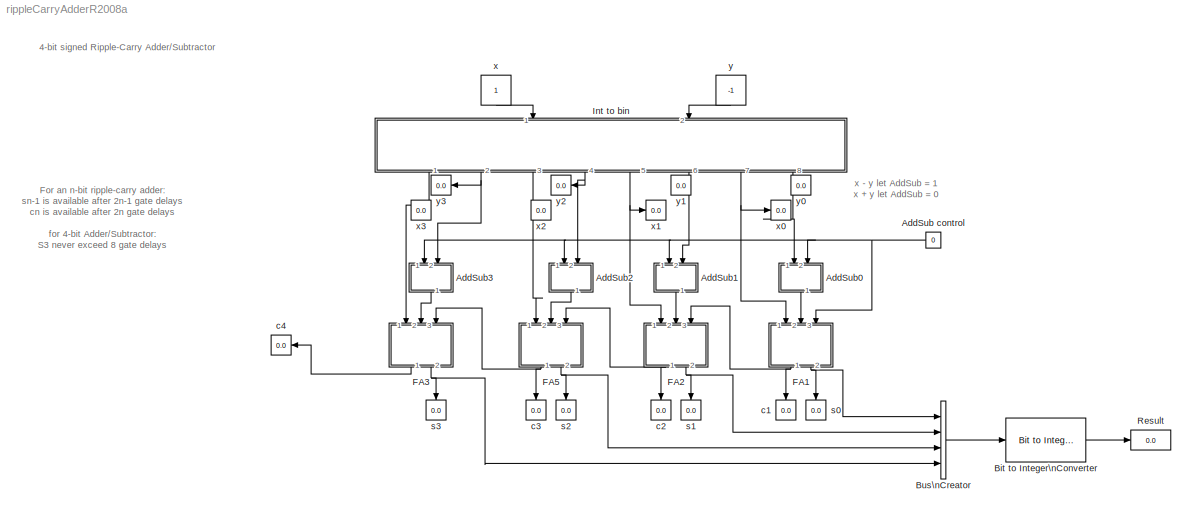
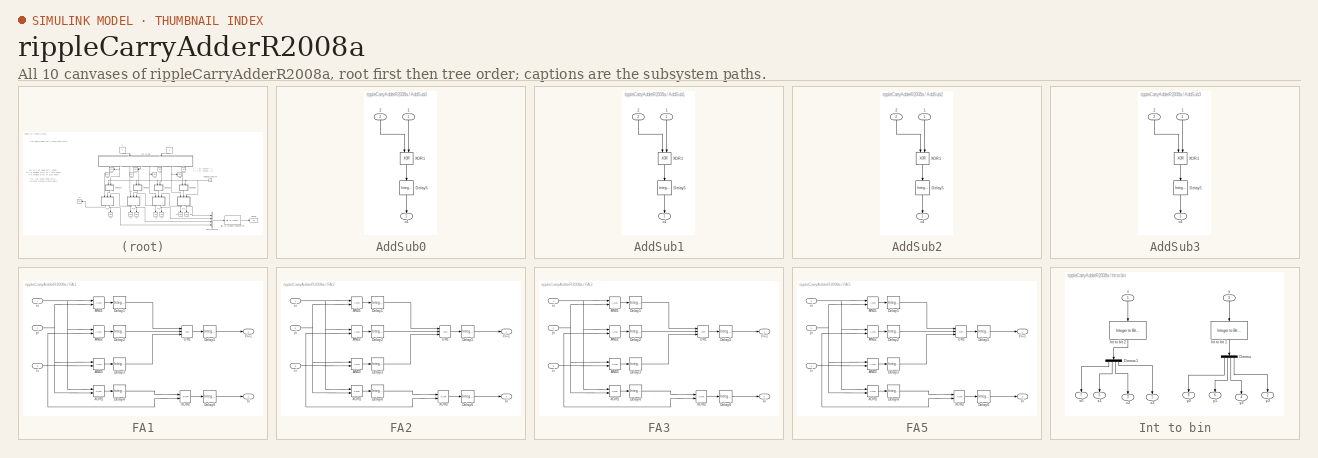
[diagram: thumbnail index - all 10 canvases of the model, root first then tree order]
MODEL rippleCarryAdderR2008a
KIND model
BLOCK [Constant] AddSub control
  OutDataTypeMode = boolean
  OutDataTypeStr = boolean
  OutMax = 1
  OutMin = 0
  Value = 0
BLOCK [SubSystem] AddSub0
  FunctionWithSeparateData = off
  MaskHideContents = off
  MinAlgLoopOccurrences = off
  Opaque = off
  Ports = [2, 1]
  PropExecContextOutsideSubsystem = off
  RTWSystemCode = Auto
BLOCK [Inport] AddSub0/1
  IconDisplay = Port number
BLOCK [Inport] AddSub0/2
  IconDisplay = Port number
  Port = 2
BLOCK [Reference] AddSub0/Delay5  REF=simulink/Discrete/Integer Delay
  NumDelays = 1
  Ports = [1, 1]
  SourceBlock = simulink/Discrete/Integer Delay
  SourceType = Integer Delay
  samptime = -1
  vinit = 0
BLOCK [Logic] AddSub0/XOR1
  AllPortsSameDT = off
  IconShape = distinctive
  Operator = XOR
  OutDataTypeMode = boolean
  OutDataTypeStr = boolean
  Ports = [2, 1]
BLOCK [Outport] AddSub0/o1
  IconDisplay = Port number
BLOCK [SubSystem] AddSub1
  FunctionWithSeparateData = off
  MaskHideContents = off
  MinAlgLoopOccurrences = off
  Opaque = off
  Ports = [2, 1]
  PropExecContextOutsideSubsystem = off
  RTWSystemCode = Auto
BLOCK [Inport] AddSub1/1
  IconDisplay = Port number
BLOCK [Inport] AddSub1/2
  IconDisplay = Port number
  Port = 2
BLOCK [Reference] AddSub1/Delay5  REF=simulink/Discrete/Integer Delay
  NumDelays = 1
  Ports = [1, 1]
  SourceBlock = simulink/Discrete/Integer Delay
  SourceType = Integer Delay
  samptime = -1
  vinit = 0
BLOCK [Logic] AddSub1/XOR1
  AllPortsSameDT = off
  IconShape = distinctive
  Operator = XOR
  OutDataTypeMode = boolean
  OutDataTypeStr = boolean
  Ports = [2, 1]
BLOCK [Outport] AddSub1/o1
  IconDisplay = Port number
BLOCK [SubSystem] AddSub2
  FunctionWithSeparateData = off
  MaskHideContents = off
  MinAlgLoopOccurrences = off
  Opaque = off
  Ports = [2, 1]
  PropExecContextOutsideSubsystem = off
  RTWSystemCode = Auto
BLOCK [Inport] AddSub2/1
  IconDisplay = Port number
BLOCK [Inport] AddSub2/2
  IconDisplay = Port number
  Port = 2
BLOCK [Reference] AddSub2/Delay5  REF=simulink/Discrete/Integer Delay
  NumDelays = 1
  Ports = [1, 1]
  SourceBlock = simulink/Discrete/Integer Delay
  SourceType = Integer Delay
  samptime = -1
  vinit = 0
BLOCK [Logic] AddSub2/XOR1
  AllPortsSameDT = off
  IconShape = distinctive
  Operator = XOR
  OutDataTypeMode = boolean
  OutDataTypeStr = boolean
  Ports = [2, 1]
BLOCK [Outport] AddSub2/o1
  IconDisplay = Port number
BLOCK [SubSystem] AddSub3
  FunctionWithSeparateData = off
  MaskHideContents = off
  MinAlgLoopOccurrences = off
  Opaque = off
  Ports = [2, 1]
  PropExecContextOutsideSubsystem = off
  RTWSystemCode = Auto
BLOCK [Inport] AddSub3/1
  IconDisplay = Port number
BLOCK [Inport] AddSub3/2
  IconDisplay = Port number
  Port = 2
BLOCK [Reference] AddSub3/Delay5  REF=simulink/Discrete/Integer Delay
  NumDelays = 1
  Ports = [1, 1]
  SourceBlock = simulink/Discrete/Integer Delay
  SourceType = Integer Delay
  samptime = -1
  vinit = 0
BLOCK [Logic] AddSub3/XOR1
  AllPortsSameDT = off
  IconShape = distinctive
  Operator = XOR
  OutDataTypeMode = boolean
  OutDataTypeStr = boolean
  Ports = [2, 1]
BLOCK [Outport] AddSub3/o1
  IconDisplay = Port number
BLOCK [Reference] Bit to Integer\nConverter  REF=commutil2/Bit to Integer\nConverter
  Ports = [1, 1]
  SourceBlock = commutil2/Bit to Integer\nConverter
  SourceType = Bit to Integer Converter
  bitOrder = LSB first
  nbits = 4
  outDtype = Inherit via internal rule
  outDtypeSigned = Inherit via internal rule
  signedOutputValues = Signed
BLOCK [BusCreator] Bus\nCreator
  DisplayOption = bar
  Ports = [4, 1]
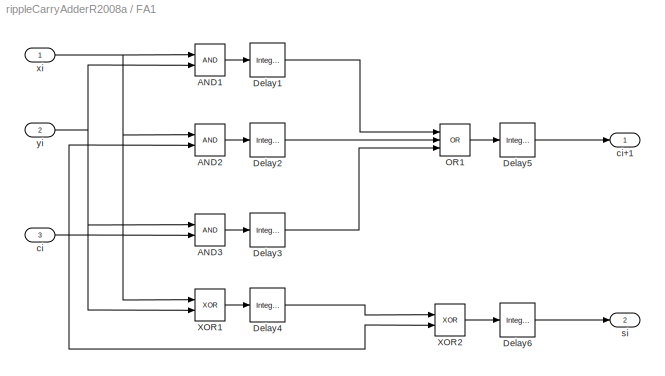
BLOCK [SubSystem] FA1
  FunctionWithSeparateData = off
  MaskHideContents = off
  MinAlgLoopOccurrences = off
  Opaque = off
  Ports = [3, 2]
  PropExecContextOutsideSubsystem = off
  RTWSystemCode = Auto
BLOCK [Logic] FA1/AND1
  AllPortsSameDT = off
  IconShape = distinctive
  OutDataTypeMode = boolean
  OutDataTypeStr = boolean
  Ports = [2, 1]
BLOCK [Logic] FA1/AND2
  AllPortsSameDT = off
  IconShape = distinctive
  OutDataTypeMode = boolean
  OutDataTypeStr = boolean
  Ports = [2, 1]
BLOCK [Logic] FA1/AND3
  AllPortsSameDT = off
  IconShape = distinctive
  OutDataTypeMode = boolean
  OutDataTypeStr = boolean
  Ports = [2, 1]
BLOCK [Reference] FA1/Delay1  REF=simulink/Discrete/Integer Delay
  NumDelays = 1
  Ports = [1, 1]
  SourceBlock = simulink/Discrete/Integer Delay
  SourceType = Integer Delay
  samptime = -1
  vinit = 0
BLOCK [Reference] FA1/Delay2  REF=simulink/Discrete/Integer Delay
  NumDelays = 1
  Ports = [1, 1]
  SourceBlock = simulink/Discrete/Integer Delay
  SourceType = Integer Delay
  samptime = -1
  vinit = 0
BLOCK [Reference] FA1/Delay3  REF=simulink/Discrete/Integer Delay
  NumDelays = 1
  Ports = [1, 1]
  SourceBlock = simulink/Discrete/Integer Delay
  SourceType = Integer Delay
  samptime = -1
  vinit = 0
BLOCK [Reference] FA1/Delay4  REF=simulink/Discrete/Integer Delay
  NumDelays = 1
  Ports = [1, 1]
  SourceBlock = simulink/Discrete/Integer Delay
  SourceType = Integer Delay
  samptime = -1
  vinit = 0
BLOCK [Reference] FA1/Delay5  REF=simulink/Discrete/Integer Delay
  NumDelays = 1
  Ports = [1, 1]
  SourceBlock = simulink/Discrete/Integer Delay
  SourceType = Integer Delay
  samptime = -1
  vinit = 0
BLOCK [Reference] FA1/Delay6  REF=simulink/Discrete/Integer Delay
  NumDelays = 1
  Ports = [1, 1]
  SourceBlock = simulink/Discrete/Integer Delay
  SourceType = Integer Delay
  samptime = -1
  vinit = 0
BLOCK [Logic] FA1/OR1
  AllPortsSameDT = off
  IconShape = distinctive
  Inputs = 3
  Operator = OR
  OutDataTypeMode = boolean
  OutDataTypeStr = boolean
  Ports = [3, 1]
BLOCK [Logic] FA1/XOR1
  AllPortsSameDT = off
  IconShape = distinctive
  Operator = XOR
  OutDataTypeMode = boolean
  OutDataTypeStr = boolean
  Ports = [2, 1]
BLOCK [Logic] FA1/XOR2
  AllPortsSameDT = off
  IconShape = distinctive
  Operator = XOR
  OutDataTypeMode = boolean
  OutDataTypeStr = boolean
  Ports = [2, 1]
BLOCK [Inport] FA1/ci
  IconDisplay = Port number
  Port = 3
BLOCK [Outport] FA1/ci+1
  IconDisplay = Port number
BLOCK [Outport] FA1/si
  IconDisplay = Port number
  Port = 2
BLOCK [Inport] FA1/xi
  IconDisplay = Port number
BLOCK [Inport] FA1/yi
  IconDisplay = Port number
  Port = 2
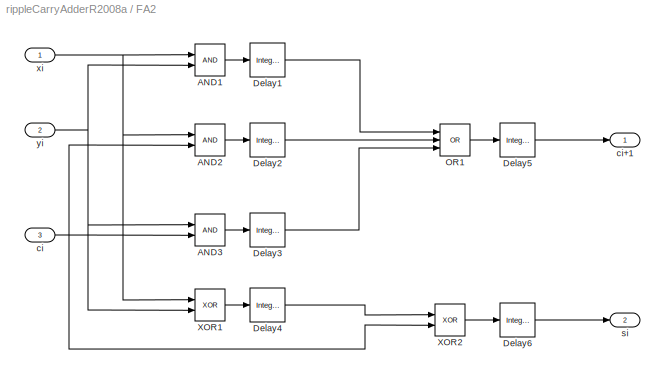
BLOCK [SubSystem] FA2
  FunctionWithSeparateData = off
  MaskHideContents = off
  MinAlgLoopOccurrences = off
  Opaque = off
  Ports = [3, 2]
  PropExecContextOutsideSubsystem = off
  RTWSystemCode = Auto
BLOCK [Logic] FA2/AND1
  AllPortsSameDT = off
  IconShape = distinctive
  OutDataTypeMode = boolean
  OutDataTypeStr = boolean
  Ports = [2, 1]
BLOCK [Logic] FA2/AND2
  AllPortsSameDT = off
  IconShape = distinctive
  OutDataTypeMode = boolean
  OutDataTypeStr = boolean
  Ports = [2, 1]
BLOCK [Logic] FA2/AND3
  AllPortsSameDT = off
  IconShape = distinctive
  OutDataTypeMode = boolean
  OutDataTypeStr = boolean
  Ports = [2, 1]
BLOCK [Reference] FA2/Delay1  REF=simulink/Discrete/Integer Delay
  NumDelays = 1
  Ports = [1, 1]
  SourceBlock = simulink/Discrete/Integer Delay
  SourceType = Integer Delay
  samptime = -1
  vinit = 0
BLOCK [Reference] FA2/Delay2  REF=simulink/Discrete/Integer Delay
  NumDelays = 1
  Ports = [1, 1]
  SourceBlock = simulink/Discrete/Integer Delay
  SourceType = Integer Delay
  samptime = -1
  vinit = 0
BLOCK [Reference] FA2/Delay3  REF=simulink/Discrete/Integer Delay
  NumDelays = 1
  Ports = [1, 1]
  SourceBlock = simulink/Discrete/Integer Delay
  SourceType = Integer Delay
  samptime = -1
  vinit = 0
BLOCK [Reference] FA2/Delay4  REF=simulink/Discrete/Integer Delay
  NumDelays = 1
  Ports = [1, 1]
  SourceBlock = simulink/Discrete/Integer Delay
  SourceType = Integer Delay
  samptime = -1
  vinit = 0
BLOCK [Reference] FA2/Delay5  REF=simulink/Discrete/Integer Delay
  NumDelays = 1
  Ports = [1, 1]
  SourceBlock = simulink/Discrete/Integer Delay
  SourceType = Integer Delay
  samptime = -1
  vinit = 0
BLOCK [Reference] FA2/Delay6  REF=simulink/Discrete/Integer Delay
  NumDelays = 1
  Ports = [1, 1]
  SourceBlock = simulink/Discrete/Integer Delay
  SourceType = Integer Delay
  samptime = -1
  vinit = 0
BLOCK [Logic] FA2/OR1
  AllPortsSameDT = off
  IconShape = distinctive
  Inputs = 3
  Operator = OR
  OutDataTypeMode = boolean
  OutDataTypeStr = boolean
  Ports = [3, 1]
BLOCK [Logic] FA2/XOR1
  AllPortsSameDT = off
  IconShape = distinctive
  Operator = XOR
  OutDataTypeMode = boolean
  OutDataTypeStr = boolean
  Ports = [2, 1]
BLOCK [Logic] FA2/XOR2
  AllPortsSameDT = off
  IconShape = distinctive
  Operator = XOR
  OutDataTypeMode = boolean
  OutDataTypeStr = boolean
  Ports = [2, 1]
BLOCK [Inport] FA2/ci
  IconDisplay = Port number
  Port = 3
BLOCK [Outport] FA2/ci+1
  IconDisplay = Port number
BLOCK [Outport] FA2/si
  IconDisplay = Port number
  Port = 2
BLOCK [Inport] FA2/xi
  IconDisplay = Port number
BLOCK [Inport] FA2/yi
  IconDisplay = Port number
  Port = 2
BLOCK [SubSystem] FA3
  FunctionWithSeparateData = off
  MaskHideContents = off
  MinAlgLoopOccurrences = off
  Opaque = off
  Ports = [3, 2]
  PropExecContextOutsideSubsystem = off
  RTWSystemCode = Auto
BLOCK [Logic] FA3/AND1
  AllPortsSameDT = off
  IconShape = distinctive
  OutDataTypeMode = boolean
  OutDataTypeStr = boolean
  Ports = [2, 1]
BLOCK [Logic] FA3/AND2
  AllPortsSameDT = off
  IconShape = distinctive
  OutDataTypeMode = boolean
  OutDataTypeStr = boolean
  Ports = [2, 1]
BLOCK [Logic] FA3/AND3
  AllPortsSameDT = off
  IconShape = distinctive
  OutDataTypeMode = boolean
  OutDataTypeStr = boolean
  Ports = [2, 1]
BLOCK [Reference] FA3/Delay1  REF=simulink/Discrete/Integer Delay
  NumDelays = 1
  Ports = [1, 1]
  SourceBlock = simulink/Discrete/Integer Delay
  SourceType = Integer Delay
  samptime = -1
  vinit = 0
BLOCK [Reference] FA3/Delay2  REF=simulink/Discrete/Integer Delay
  NumDelays = 1
  Ports = [1, 1]
  SourceBlock = simulink/Discrete/Integer Delay
  SourceType = Integer Delay
  samptime = -1
  vinit = 0
BLOCK [Reference] FA3/Delay3  REF=simulink/Discrete/Integer Delay
  NumDelays = 1
  Ports = [1, 1]
  SourceBlock = simulink/Discrete/Integer Delay
  SourceType = Integer Delay
  samptime = -1
  vinit = 0
BLOCK [Reference] FA3/Delay4  REF=simulink/Discrete/Integer Delay
  NumDelays = 1
  Ports = [1, 1]
  SourceBlock = simulink/Discrete/Integer Delay
  SourceType = Integer Delay
  samptime = -1
  vinit = 0
BLOCK [Reference] FA3/Delay5  REF=simulink/Discrete/Integer Delay
  NumDelays = 1
  Ports = [1, 1]
  SourceBlock = simulink/Discrete/Integer Delay
  SourceType = Integer Delay
  samptime = -1
  vinit = 0
BLOCK [Reference] FA3/Delay6  REF=simulink/Discrete/Integer Delay
  NumDelays = 1
  Ports = [1, 1]
  SourceBlock = simulink/Discrete/Integer Delay
  SourceType = Integer Delay
  samptime = -1
  vinit = 0
BLOCK [Logic] FA3/OR1
  AllPortsSameDT = off
  IconShape = distinctive
  Inputs = 3
  Operator = OR
  OutDataTypeMode = boolean
  OutDataTypeStr = boolean
  Ports = [3, 1]
BLOCK [Logic] FA3/XOR1
  AllPortsSameDT = off
  IconShape = distinctive
  Operator = XOR
  OutDataTypeMode = boolean
  OutDataTypeStr = boolean
  Ports = [2, 1]
BLOCK [Logic] FA3/XOR2
  AllPortsSameDT = off
  IconShape = distinctive
  Operator = XOR
  OutDataTypeMode = boolean
  OutDataTypeStr = boolean
  Ports = [2, 1]
BLOCK [Inport] FA3/ci
  IconDisplay = Port number
  Port = 3
BLOCK [Outport] FA3/ci+1
  IconDisplay = Port number
BLOCK [Outport] FA3/si
  IconDisplay = Port number
  Port = 2
BLOCK [Inport] FA3/xi
  IconDisplay = Port number
BLOCK [Inport] FA3/yi
  IconDisplay = Port number
  Port = 2
BLOCK [SubSystem] FA5
  FunctionWithSeparateData = off
  MaskHideContents = off
  MinAlgLoopOccurrences = off
  Opaque = off
  Ports = [3, 2]
  PropExecContextOutsideSubsystem = off
  RTWSystemCode = Auto
BLOCK [Logic] FA5/AND1
  AllPortsSameDT = off
  IconShape = distinctive
  OutDataTypeMode = boolean
  OutDataTypeStr = boolean
  Ports = [2, 1]
BLOCK [Logic] FA5/AND2
  AllPortsSameDT = off
  IconShape = distinctive
  OutDataTypeMode = boolean
  OutDataTypeStr = boolean
  Ports = [2, 1]
BLOCK [Logic] FA5/AND3
  AllPortsSameDT = off
  IconShape = distinctive
  OutDataTypeMode = boolean
  OutDataTypeStr = boolean
  Ports = [2, 1]
BLOCK [Reference] FA5/Delay1  REF=simulink/Discrete/Integer Delay
  NumDelays = 1
  Ports = [1, 1]
  SourceBlock = simulink/Discrete/Integer Delay
  SourceType = Integer Delay
  samptime = -1
  vinit = 0
BLOCK [Reference] FA5/Delay2  REF=simulink/Discrete/Integer Delay
  NumDelays = 1
  Ports = [1, 1]
  SourceBlock = simulink/Discrete/Integer Delay
  SourceType = Integer Delay
  samptime = -1
  vinit = 0
BLOCK [Reference] FA5/Delay3  REF=simulink/Discrete/Integer Delay
  NumDelays = 1
  Ports = [1, 1]
  SourceBlock = simulink/Discrete/Integer Delay
  SourceType = Integer Delay
  samptime = -1
  vinit = 0
BLOCK [Reference] FA5/Delay4  REF=simulink/Discrete/Integer Delay
  NumDelays = 1
  Ports = [1, 1]
  SourceBlock = simulink/Discrete/Integer Delay
  SourceType = Integer Delay
  samptime = -1
  vinit = 0
BLOCK [Reference] FA5/Delay5  REF=simulink/Discrete/Integer Delay
  NumDelays = 1
  Ports = [1, 1]
  SourceBlock = simulink/Discrete/Integer Delay
  SourceType = Integer Delay
  samptime = -1
  vinit = 0
BLOCK [Reference] FA5/Delay6  REF=simulink/Discrete/Integer Delay
  NumDelays = 1
  Ports = [1, 1]
  SourceBlock = simulink/Discrete/Integer Delay
  SourceType = Integer Delay
  samptime = -1
  vinit = 0
BLOCK [Logic] FA5/OR1
  AllPortsSameDT = off
  IconShape = distinctive
  Inputs = 3
  Operator = OR
  OutDataTypeMode = boolean
  OutDataTypeStr = boolean
  Ports = [3, 1]
BLOCK [Logic] FA5/XOR1
  AllPortsSameDT = off
  IconShape = distinctive
  Operator = XOR
  OutDataTypeMode = boolean
  OutDataTypeStr = boolean
  Ports = [2, 1]
BLOCK [Logic] FA5/XOR2
  AllPortsSameDT = off
  IconShape = distinctive
  Operator = XOR
  OutDataTypeMode = boolean
  OutDataTypeStr = boolean
  Ports = [2, 1]
BLOCK [Inport] FA5/ci
  IconDisplay = Port number
  Port = 3
BLOCK [Outport] FA5/ci+1
  IconDisplay = Port number
BLOCK [Outport] FA5/si
  IconDisplay = Port number
  Port = 2
BLOCK [Inport] FA5/xi
  IconDisplay = Port number
BLOCK [Inport] FA5/yi
  IconDisplay = Port number
  Port = 2
BLOCK [SubSystem] Int to bin
  FunctionWithSeparateData = off
  MaskHideContents = off
  MinAlgLoopOccurrences = off
  Opaque = off
  Ports = [2, 8]
  PropExecContextOutsideSubsystem = off
  RTWSystemCode = Auto
BLOCK [Demux] Int to bin/Demux
  DisplayOption = bar
  Ports = [1, 4]
BLOCK [Demux] Int to bin/Demux1
  DisplayOption = bar
  Ports = [1, 4]
BLOCK [Reference] Int to bin/Int to bit 1  REF=commutil2/Integer to Bit\nConverter
  Ports = [1, 1]
  SourceBlock = commutil2/Integer to Bit\nConverter
  SourceType = Integer to Bit Converter
  bitOrder = LSB first
  nbits = 4
  outDtype = Inherit via internal rule
  signedInputValues = Signed
BLOCK [Reference] Int to bin/Int to bit 2  REF=commutil2/Integer to Bit\nConverter
  Ports = [1, 1]
  SourceBlock = commutil2/Integer to Bit\nConverter
  SourceType = Integer to Bit Converter
  bitOrder = LSB first
  nbits = 4
  outDtype = Inherit via internal rule
  signedInputValues = Signed
BLOCK [Inport] Int to bin/x
  IconDisplay = Port number
BLOCK [Outport] Int to bin/x0
  IconDisplay = Port number
  Port = 7
BLOCK [Outport] Int to bin/x1
  IconDisplay = Port number
  Port = 5
BLOCK [Outport] Int to bin/x2
  IconDisplay = Port number
  Port = 3
BLOCK [Outport] Int to bin/x3
  IconDisplay = Port number
BLOCK [Inport] Int to bin/y
  IconDisplay = Port number
  Port = 2
BLOCK [Outport] Int to bin/y0
  IconDisplay = Port number
  Port = 8
BLOCK [Outport] Int to bin/y1
  IconDisplay = Port number
  Port = 6
BLOCK [Outport] Int to bin/y2
  IconDisplay = Port number
  Port = 4
BLOCK [Outport] Int to bin/y3
  IconDisplay = Port number
  Port = 2
BLOCK [Display] Result
  Decimation = 1
  Ports = [1]
BLOCK [Display] c1
  Decimation = 1
  Ports = [1]
BLOCK [Display] c2
  Decimation = 1
  Ports = [1]
BLOCK [Display] c3
  Decimation = 1
  Ports = [1]
BLOCK [Display] c4
  Decimation = 1
  Ports = [1]
BLOCK [Display] s0
  Decimation = 1
  Ports = [1]
BLOCK [Display] s1
  Decimation = 1
  Ports = [1]
BLOCK [Display] s2
  Decimation = 1
  Ports = [1]
BLOCK [Display] s3
  Decimation = 1
  Ports = [1]
BLOCK [Constant] x
  OutDataTypeMode = int8
  OutDataTypeStr = int8
  OutMax = 7
  OutMin = -8
  SampleTime = 1
BLOCK [Display] x0
  Decimation = 1
  Ports = [1]
BLOCK [Display] x1
  Decimation = 1
  Ports = [1]
BLOCK [Display] x2
  Decimation = 1
  Ports = [1]
BLOCK [Display] x3
  Decimation = 1
  Ports = [1]
BLOCK [Constant] y
  OutDataTypeMode = int8
  OutDataTypeStr = int8
  OutMax = 7
  OutMin = -8
  SampleTime = 1
  Value = -1
BLOCK [Display] y0
  Decimation = 1
  Ports = [1]
BLOCK [Display] y1
  Decimation = 1
  Ports = [1]
BLOCK [Display] y2
  Decimation = 1
  Ports = [1]
BLOCK [Display] y3
  Decimation = 1
  Ports = [1]
ANNOTATION (root): 4-bit signed Ripple-Carry Adder/Subtractor
ANNOTATION (root): For an n-bit ripple-carry adder: \nsn-1 is available after 2n-1 gate delays\ncn is available after 2n gate delays\n\nfor 4-bit Adder/Subtractor:\nS3 never exceed 8 gate delays\nc4 never exceed 9 gate delays
ANNOTATION (root): x - y let AddSub = 1\nx + y let AddSub = 0
NET AddSub control:1 -> AddSub0:2, AddSub1:1, AddSub2:1, AddSub3:1, FA1:3
LINE AddSub0/1:1 -> AddSub0/XOR1:2
LINE AddSub0/2:1 -> AddSub0/XOR1:1
LINE AddSub0/Delay5:1 -> AddSub0/o1:1
LINE AddSub0/XOR1:1 -> AddSub0/Delay5:1
LINE AddSub0:1 -> FA1:2
LINE AddSub1/1:1 -> AddSub1/XOR1:2
LINE AddSub1/2:1 -> AddSub1/XOR1:1
LINE AddSub1/Delay5:1 -> AddSub1/o1:1
LINE AddSub1/XOR1:1 -> AddSub1/Delay5:1
LINE AddSub1:1 -> FA2:2
LINE AddSub2/1:1 -> AddSub2/XOR1:2
LINE AddSub2/2:1 -> AddSub2/XOR1:1
LINE AddSub2/Delay5:1 -> AddSub2/o1:1
LINE AddSub2/XOR1:1 -> AddSub2/Delay5:1
LINE AddSub2:1 -> FA5:2
LINE AddSub3/1:1 -> AddSub3/XOR1:2
LINE AddSub3/2:1 -> AddSub3/XOR1:1
LINE AddSub3/Delay5:1 -> AddSub3/o1:1
LINE AddSub3/XOR1:1 -> AddSub3/Delay5:1
LINE AddSub3:1 -> FA3:2
LINE Bit to Integer\nConverter:1 -> Result:1
LINE Bus\nCreator:1 -> Bit to Integer\nConverter:1
LINE FA1/AND1:1 -> FA1/Delay1:1
LINE FA1/AND2:1 -> FA1/Delay2:1
LINE FA1/AND3:1 -> FA1/Delay3:1
LINE FA1/Delay1:1 -> FA1/OR1:1
LINE FA1/Delay2:1 -> FA1/OR1:2
LINE FA1/Delay3:1 -> FA1/OR1:3
LINE FA1/Delay4:1 -> FA1/XOR2:1
LINE FA1/Delay5:1 -> FA1/ci+1:1
LINE FA1/Delay6:1 -> FA1/si:1
LINE FA1/OR1:1 -> FA1/Delay5:1
LINE FA1/XOR1:1 -> FA1/Delay4:1
LINE FA1/XOR2:1 -> FA1/Delay6:1
NET FA1/ci:1 -> FA1/AND2:2, FA1/AND3:2, FA1/XOR2:2
NET FA1/xi:1 -> FA1/AND1:1, FA1/AND2:1, FA1/XOR1:1
NET FA1/yi:1 -> FA1/AND1:2, FA1/AND3:1, FA1/XOR1:2
NET FA1:1 -> FA2:3, c1:1
NET FA1:2 -> Bus\nCreator:1, s0:1
LINE FA2/AND1:1 -> FA2/Delay1:1
LINE FA2/AND2:1 -> FA2/Delay2:1
LINE FA2/AND3:1 -> FA2/Delay3:1
LINE FA2/Delay1:1 -> FA2/OR1:1
LINE FA2/Delay2:1 -> FA2/OR1:2
LINE FA2/Delay3:1 -> FA2/OR1:3
LINE FA2/Delay4:1 -> FA2/XOR2:1
LINE FA2/Delay5:1 -> FA2/ci+1:1
LINE FA2/Delay6:1 -> FA2/si:1
LINE FA2/OR1:1 -> FA2/Delay5:1
LINE FA2/XOR1:1 -> FA2/Delay4:1
LINE FA2/XOR2:1 -> FA2/Delay6:1
NET FA2/ci:1 -> FA2/AND2:2, FA2/AND3:2, FA2/XOR2:2
NET FA2/xi:1 -> FA2/AND1:1, FA2/AND2:1, FA2/XOR1:1
NET FA2/yi:1 -> FA2/AND1:2, FA2/AND3:1, FA2/XOR1:2
NET FA2:1 -> FA5:3, c2:1
NET FA2:2 -> Bus\nCreator:2, s1:1
LINE FA3/AND1:1 -> FA3/Delay1:1
LINE FA3/AND2:1 -> FA3/Delay2:1
LINE FA3/AND3:1 -> FA3/Delay3:1
LINE FA3/Delay1:1 -> FA3/OR1:1
LINE FA3/Delay2:1 -> FA3/OR1:2
LINE FA3/Delay3:1 -> FA3/OR1:3
LINE FA3/Delay4:1 -> FA3/XOR2:1
LINE FA3/Delay5:1 -> FA3/ci+1:1
LINE FA3/Delay6:1 -> FA3/si:1
LINE FA3/OR1:1 -> FA3/Delay5:1
LINE FA3/XOR1:1 -> FA3/Delay4:1
LINE FA3/XOR2:1 -> FA3/Delay6:1
NET FA3/ci:1 -> FA3/AND2:2, FA3/AND3:2, FA3/XOR2:2
NET FA3/xi:1 -> FA3/AND1:1, FA3/AND2:1, FA3/XOR1:1
NET FA3/yi:1 -> FA3/AND1:2, FA3/AND3:1, FA3/XOR1:2
LINE FA3:1 -> c4:1
NET FA3:2 -> Bus\nCreator:4, s3:1
LINE FA5/AND1:1 -> FA5/Delay1:1
LINE FA5/AND2:1 -> FA5/Delay2:1
LINE FA5/AND3:1 -> FA5/Delay3:1
LINE FA5/Delay1:1 -> FA5/OR1:1
LINE FA5/Delay2:1 -> FA5/OR1:2
LINE FA5/Delay3:1 -> FA5/OR1:3
LINE FA5/Delay4:1 -> FA5/XOR2:1
LINE FA5/Delay5:1 -> FA5/ci+1:1
LINE FA5/Delay6:1 -> FA5/si:1
LINE FA5/OR1:1 -> FA5/Delay5:1
LINE FA5/XOR1:1 -> FA5/Delay4:1
LINE FA5/XOR2:1 -> FA5/Delay6:1
NET FA5/ci:1 -> FA5/AND2:2, FA5/AND3:2, FA5/XOR2:2
NET FA5/xi:1 -> FA5/AND1:1, FA5/AND2:1, FA5/XOR1:1
NET FA5/yi:1 -> FA5/AND1:2, FA5/AND3:1, FA5/XOR1:2
NET FA5:1 -> FA3:3, c3:1
NET FA5:2 -> Bus\nCreator:3, s2:1
LINE Int to bin/Demux1:1 -> Int to bin/x0:1
LINE Int to bin/Demux1:2 -> Int to bin/x1:1
LINE Int to bin/Demux1:3 -> Int to bin/x2:1
LINE Int to bin/Demux1:4 -> Int to bin/x3:1
LINE Int to bin/Demux:1 -> Int to bin/y0:1
LINE Int to bin/Demux:2 -> Int to bin/y1:1
LINE Int to bin/Demux:3 -> Int to bin/y2:1
LINE Int to bin/Demux:4 -> Int to bin/y3:1
LINE Int to bin/Int to bit 1:1 -> Int to bin/Demux:1
LINE Int to bin/Int to bit 2:1 -> Int to bin/Demux1:1
LINE Int to bin/x:1 -> Int to bin/Int to bit 2:1
LINE Int to bin/y:1 -> Int to bin/Int to bit 1:1
NET Int to bin:1 -> FA3:1, x3:1
NET Int to bin:2 -> AddSub3:2, y3:1
NET Int to bin:3 -> FA5:1, x2:1
NET Int to bin:4 -> AddSub2:2, y2:1
NET Int to bin:5 -> FA2:1, x1:1
NET Int to bin:6 -> AddSub1:2, y1:1
NET Int to bin:7 -> FA1:1, x0:1
NET Int to bin:8 -> AddSub0:1, y0:1
LINE x:1 -> Int to bin:1
LINE y:1 -> Int to bin:2
note: NET lines group one-source signal fan-out (src -> all destinations, sorted); 1:1 wires keep LINE
